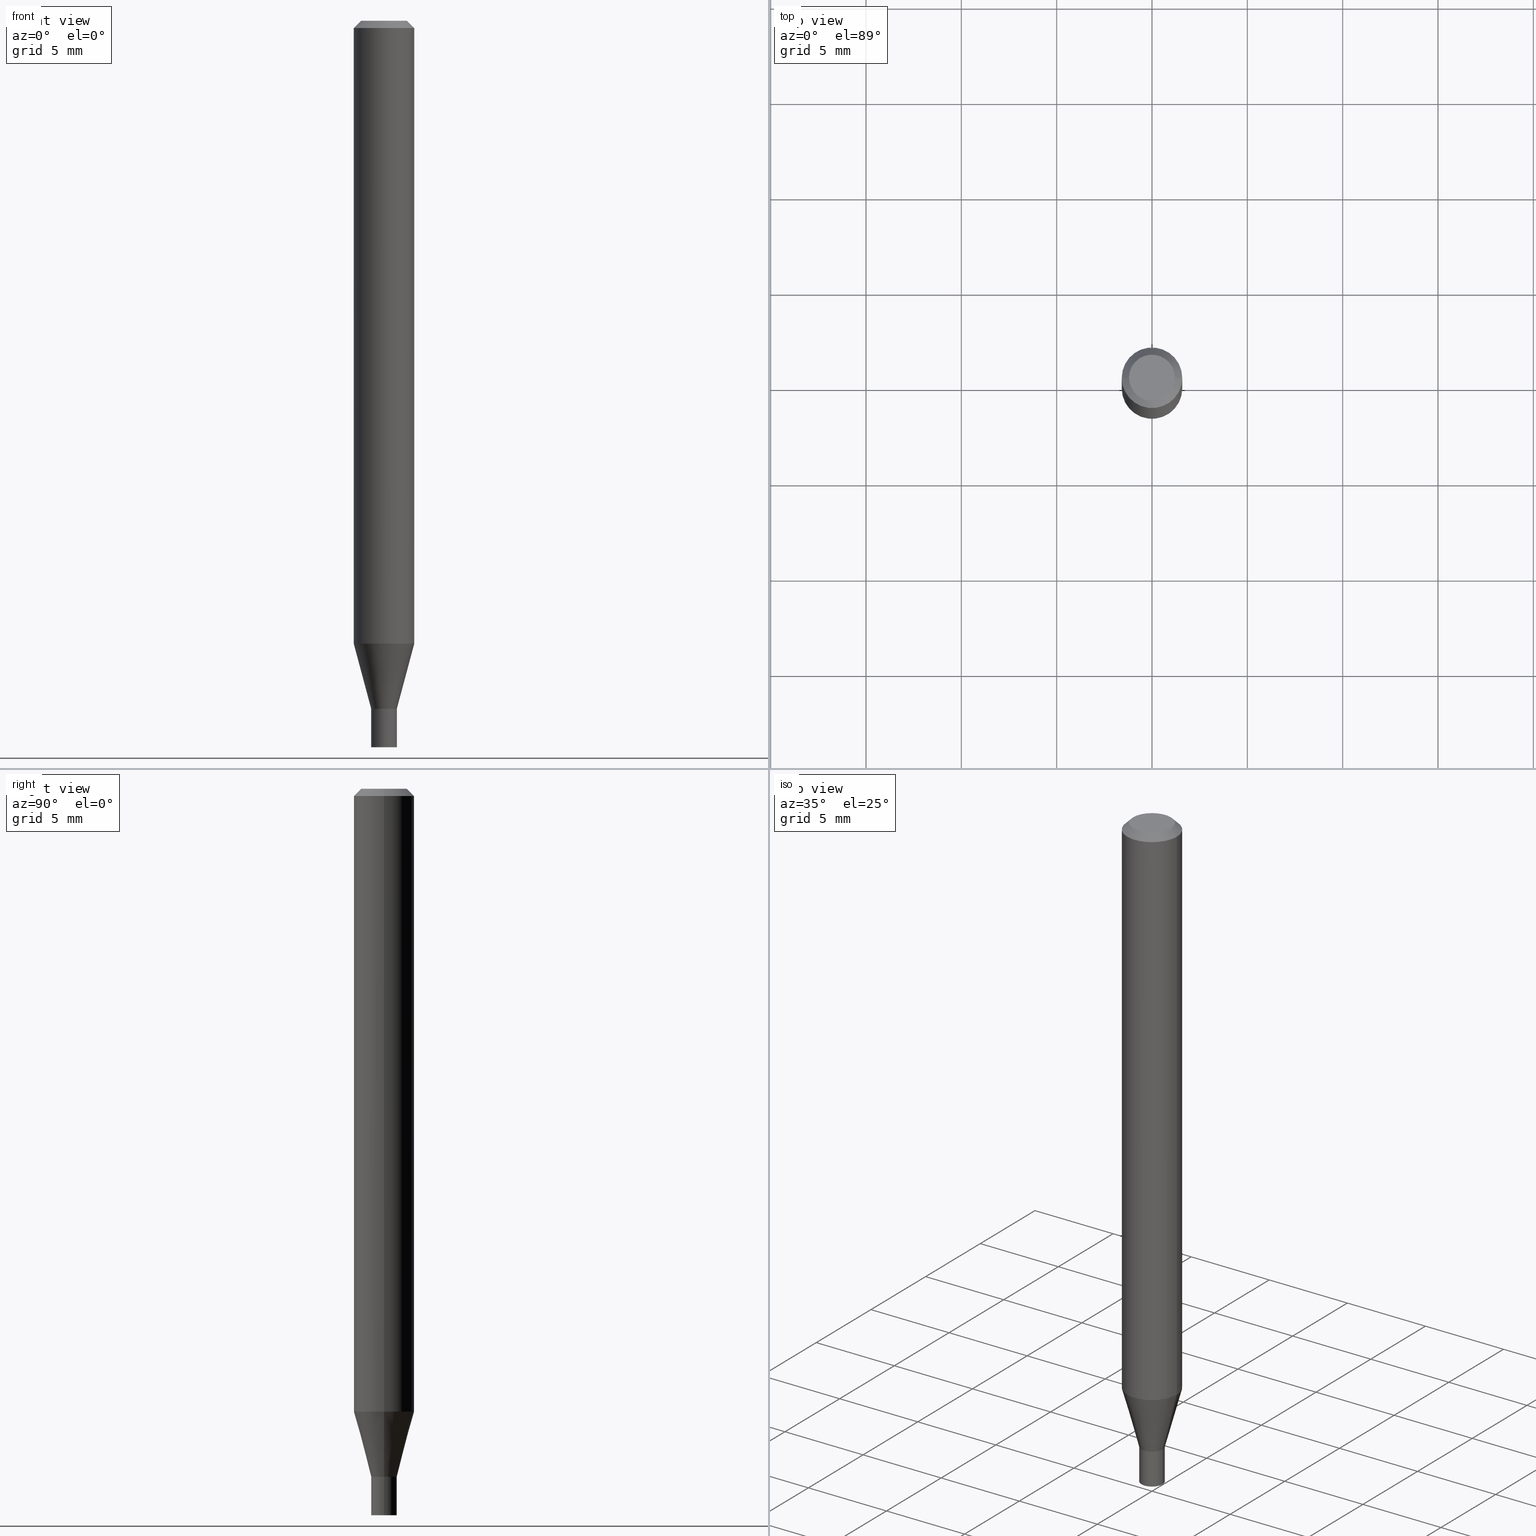
[diagram: canonical four-view strip — front | top / right | iso, engineering-drawing reading convention]
A machine part, canonical four-view strip (front | top / right | iso — engineering-drawing reading convention). The complete STEP part file that produces these views, byte-faithful:
ISO-10303-21;
HEADER;
FILE_DESCRIPTION (( 'STEP AP203' ),
    '1' );
FILE_NAME ('04088.STEP',
    '2024-03-14T16:58:25',
    ( '' ),
    ( '' ),
    'SwSTEP 2.0',
    'SolidWorks 2023',
    '' );
FILE_SCHEMA (( 'CONFIG_CONTROL_DESIGN' ));
ENDSEC;

DATA;
#1 = DIRECTION ( 'NONE',  ( 1.000000000000000000, -6.982962677686258822E-15, 0.000000000000000000 ) ) ;
#2 = DIRECTION ( 'NONE',  ( -2.445468806185136597E-29, 3.491481338843145583E-15, 1.000000000000000000 ) ) ;
#3 = VERTEX_POINT ( 'NONE', #185 ) ;
#4 = EDGE_CURVE ( 'NONE', #3, #172, #290, .T. ) ;
#5 = DIRECTION ( 'NONE',  ( -2.445468806185136597E-29, 3.491481338843145583E-15, 1.000000000000000000 ) ) ;
#6 = CARTESIAN_POINT ( 'NONE',  ( 3.668203209277704895E-29, -5.237222008264718177E-15, -1.500000000000000222 ) ) ;
#7 = PLANE ( 'NONE',  #384 ) ;
#8 = ORIENTED_EDGE ( 'NONE', *, *, #357, .F. ) ;
#9 = CARTESIAN_POINT ( 'NONE',  ( 0.000000000000000000, 0.000000000000000000, 0.000000000000000000 ) ) ;
#10 = DIRECTION ( 'NONE',  ( 1.000000000000000000, -6.982962677686277755E-15, 0.000000000000000000 ) ) ;
#11 = CONICAL_SURFACE ( 'NONE', #183, 0.06250000000000000000, 0.7853981633974438381 ) ;
#12 = VECTOR ( 'NONE', #250, 39.37007874015748143 ) ;
#13 = CC_DESIGN_APPROVAL ( #354, ( #256 ) ) ;
#14 = CARTESIAN_POINT ( 'NONE',  ( -0.02599999999999999534, -4.774908130529064219E-15, -1.420500000000000318 ) ) ;
#15 = ADVANCED_FACE ( 'NONE', ( #46 ), #446, .T. ) ;
#16 = PERSON_AND_ORGANIZATION ( #463, #425 ) ;
#17 = ADVANCED_FACE ( 'NONE', ( #122 ), #7, .F. ) ;
#18 = APPLICATION_CONTEXT ( 'configuration controlled 3d designs of mechanical parts and assemblies' ) ;
#19 = CIRCLE ( 'NONE', #407, 0.02649999999999999925 ) ;
#20 = AXIS2_PLACEMENT_3D ( 'NONE', #175, #456, #454 ) ;
#21 = LENGTH_MEASURE_WITH_UNIT ( LENGTH_MEASURE( 0.02539999999999999897 ), #296 );
#22 = ORIENTED_EDGE ( 'NONE', *, *, #244, .F. ) ;
#23 = VERTEX_POINT ( 'NONE', #150 ) ;
#24 = MANIFOLD_SOLID_BREP ( 'Body-Move/Copy2[2]', #110 ) ;
#25 = PERSON_AND_ORGANIZATION ( #463, #425 ) ;
#26 = CC_DESIGN_PERSON_AND_ORGANIZATION_ASSIGNMENT ( #264, #161, ( #256 ) ) ;
#27 = ORIENTED_EDGE ( 'NONE', *, *, #144, .F. ) ;
#28 = COORDINATED_UNIVERSAL_TIME_OFFSET ( 5, 0, .BEHIND. ) ;
#29 = MANIFOLD_SOLID_BREP ( 'Body-Move/Copy2[1]', #377 ) ;
#30 = DIRECTION ( 'NONE',  ( -1.000000000000000000, 6.982962677686266711E-15, 0.000000000000000000 ) ) ;
#31 = ORIENTED_EDGE ( 'NONE', *, *, #4, .F. ) ;
#32 = ORIENTED_EDGE ( 'NONE', *, *, #270, .F. ) ;
#33 = ADVANCED_FACE ( 'NONE', ( #152 ), #11, .T. ) ;
#34 = ORIENTED_EDGE ( 'NONE', *, *, #410, .F. ) ;
#35 = CARTESIAN_POINT ( 'NONE',  ( 0.06250000000000000000, -4.364351673553916694E-16, 3.047610484872459871E-30 ) ) ;
#36 = EDGE_LOOP ( 'NONE', ( #184, #341 ) ) ;
#37 = EDGE_LOOP ( 'NONE', ( #236, #303, #279, #169 ) ) ;
#38 = DIRECTION ( 'NONE',  ( -2.445468806185136877E-29, 3.491481338843145188E-15, 1.000000000000000000 ) ) ;
#39 = ADVANCED_FACE ( 'NONE', ( #288 ), #441, .T. ) ;
#40 = FACE_OUTER_BOUND ( 'NONE', #417, .T. ) ;
#41 = ORIENTED_EDGE ( 'NONE', *, *, #449, .T. ) ;
#42 = LINE ( 'NONE', #398, #353 ) ;
#43 = ORIENTED_EDGE ( 'NONE', *, *, #419, .T. ) ;
#44 = ORIENTED_EDGE ( 'NONE', *, *, #274, .F. ) ;
#45 = CYLINDRICAL_SURFACE ( 'NONE', #111, 0.06250000000000000000 ) ;
#46 = FACE_OUTER_BOUND ( 'NONE', #381, .T. ) ;
#47 = ORIENTED_EDGE ( 'NONE', *, *, #275, .T. ) ;
#48 = VECTOR ( 'NONE', #186, 39.37007874015748143 ) ;
#49 = APPLICATION_CONTEXT ( 'configuration controlled 3d designs of mechanical parts and assemblies' ) ;
#50 = EDGE_CURVE ( 'NONE', #226, #172, #393, .T. ) ;
#51 = PLANE ( 'NONE',  #247 ) ;
#52 = CARTESIAN_POINT ( 'NONE',  ( 3.473788439185986455E-29, -4.959649241826688854E-15, -1.420500000000000096 ) ) ;
#53 = CARTESIAN_POINT ( 'NONE',  ( 0.02649999999999999925, -5.422270519223404655E-15, -1.500000000000000222 ) ) ;
#54 = DIRECTION ( 'NONE',  ( -2.438088387897960049E-29, 3.491481338843145188E-15, 1.000000000000000000 ) ) ;
#55 = EDGE_CURVE ( 'NONE', #455, #323, #19, .T. ) ;
#56 = CONICAL_SURFACE ( 'NONE', #245, 0.02599999999999999534, 0.7853981633974739252 ) ;
#57 = DATE_TIME_ROLE ( 'classification_date' ) ;
#58 = APPROVAL_DATE_TIME ( #192, #354 ) ;
#59 = AXIS2_PLACEMENT_3D ( 'NONE', #108, #243, #392 ) ;
#60 = DIRECTION ( 'NONE',  ( 1.000000000000000000, 0.000000000000000000, 0.000000000000000000 ) ) ;
#61 = LOCAL_TIME ( 12, 58, 25.00000000000000000, #94 ) ;
#62 = ORIENTED_EDGE ( 'NONE', *, *, #163, .T. ) ;
#63 = UNCERTAINTY_MEASURE_WITH_UNIT (LENGTH_MEASURE( 1.000000000000000082E-05 ), #338, 'distance_accuracy_value', 'NONE');
#64 = CALENDAR_DATE ( 2024, 14, 3 ) ;
#65 = ORIENTED_EDGE ( 'NONE', *, *, #147, .T. ) ;
#66 = ORIENTED_EDGE ( 'NONE', *, *, #147, .F. ) ;
#67 = DIRECTION ( 'NONE',  ( 1.000000000000000000, -6.982962677686262766E-15, 0.000000000000000000 ) ) ;
#68 = ORIENTED_EDGE ( 'NONE', *, *, #331, .T. ) ;
#69 = CARTESIAN_POINT ( 'NONE',  ( -3.350520365439544480E-45, 4.783655101941405986E-31, 1.370093274943982539E-16 ) ) ;
#70 = ORIENTED_EDGE ( 'NONE', *, *, #101, .T. ) ;
#71 = ORIENTED_EDGE ( 'NONE', *, *, #55, .T. ) ;
#72 = DIRECTION ( 'NONE',  ( 1.000000000000000000, -6.982962677686277755E-15, 0.000000000000000000 ) ) ;
#73 = DIRECTION ( 'NONE',  ( 2.445468806185136597E-29, -3.491481338843145583E-15, -1.000000000000000000 ) ) ;
#74 = FACE_OUTER_BOUND ( 'NONE', #117, .T. ) ;
#75 = CIRCLE ( 'NONE', #334, 0.02599999999999999534 ) ;
#76 = LOCAL_TIME ( 12, 58, 25.00000000000000000, #28 ) ;
#77 = DIRECTION ( 'NONE',  ( -2.445468806185136597E-29, 3.491481338843145583E-15, 1.000000000000000000 ) ) ;
#78 = VERTEX_POINT ( 'NONE', #464 ) ;
#79 = LINE ( 'NONE', #112, #394 ) ;
#80 = DIRECTION ( 'NONE',  ( -0.2588190451025215721, 5.211531920934551831E-15, 0.9659258262890679791 ) ) ;
#81 = CONICAL_SURFACE ( 'NONE', #448, 0.02650000000000020048, 0.2617993877991502960 ) ;
#82 = ADVANCED_FACE ( 'NONE', ( #280 ), #56, .T. ) ;
#83 = DIRECTION ( 'NONE',  ( -2.445468806185136597E-29, 3.491481338843145583E-15, 1.000000000000000000 ) ) ;
#84 = DIRECTION ( 'NONE',  ( 0.7071067811865656694, -2.468850131082446387E-15, 0.7071067811865294761 ) ) ;
#85 = DIRECTION ( 'NONE',  ( 2.445468806185136597E-29, -3.491481338843145583E-15, -1.000000000000000000 ) ) ;
#86 = EDGE_CURVE ( 'NONE', #138, #3, #452, .T. ) ;
#87 = CARTESIAN_POINT ( 'NONE',  ( 3.473788439185987016E-29, -4.959649241826689643E-15, -1.420500000000000318 ) ) ;
#88 = DIRECTION ( 'NONE',  ( -2.445468806185136597E-29, 3.491481338843145583E-15, 1.000000000000000000 ) ) ;
#89 = DIRECTION ( 'NONE',  ( -2.445468806185136597E-29, 3.491481338843145583E-15, 1.000000000000000000 ) ) ;
#90 = VECTOR ( 'NONE', #84, 39.37007874015748143 ) ;
#91 = DATE_AND_TIME ( #408, #155 ) ;
#92 = COORDINATED_UNIVERSAL_TIME_OFFSET ( 5, 0, .BEHIND. ) ;
#93 = PRODUCT_DEFINITION ( 'UNKNOWN', '', #256, #413 ) ;
#94 = COORDINATED_UNIVERSAL_TIME_OFFSET ( 5, 0, .BEHIND. ) ;
#95 = CARTESIAN_POINT ( 'NONE',  ( 3.473788439185986455E-29, -4.959649241826688854E-15, -1.420500000000000096 ) ) ;
#96 = PERSON_AND_ORGANIZATION_ROLE ( 'classification_officer' ) ;
#97 = ADVANCED_FACE ( 'NONE', ( #254 ), #176, .T. ) ;
#98 = ORIENTED_EDGE ( 'NONE', *, *, #275, .F. ) ;
#99 = CARTESIAN_POINT ( 'NONE',  ( 3.145230341197711015E-29, -4.490555354818009189E-15, -1.286146170927521704 ) ) ;
#100 = CC_DESIGN_PERSON_AND_ORGANIZATION_ASSIGNMENT ( #265, #336, ( #93 ) ) ;
#101 = EDGE_CURVE ( 'NONE', #462, #423, #344, .T. ) ;
#102 = AXIS2_PLACEMENT_3D ( 'NONE', #188, #321, #438 ) ;
#103 = CARTESIAN_POINT ( 'NONE',  ( 0.000000000000000000, 0.000000000000000000, 0.000000000000000000 ) ) ;
#104 = VECTOR ( 'NONE', #38, 39.37007874015748143 ) ;
#105 = ORIENTED_EDGE ( 'NONE', *, *, #50, .T. ) ;
#106 = FACE_OUTER_BOUND ( 'NONE', #431, .T. ) ;
#107 = DIRECTION ( 'NONE',  ( -2.445468806185136597E-29, 3.491481338843145583E-15, 1.000000000000000000 ) ) ;
#108 = CARTESIAN_POINT ( 'NONE',  ( 3.473788439185986455E-29, -4.959649241826688854E-15, -1.420500000000000096 ) ) ;
#109 = DIRECTION ( 'NONE',  ( -2.445468806185136597E-29, 3.491481338843145583E-15, 1.000000000000000000 ) ) ;
#110 = CLOSED_SHELL ( 'NONE', ( #208, #82, #205, #97, #39, #181, #435, #33, #414, #444, #114, #130 ) ) ;
#111 = AXIS2_PLACEMENT_3D ( 'NONE', #9, #149, #291 ) ;
#112 = CARTESIAN_POINT ( 'NONE',  ( 0.02650000000000020048, -5.144697752785376121E-15, -1.420500000000000096 ) ) ;
#113 = VERTEX_POINT ( 'NONE', #179 ) ;
#114 = ADVANCED_FACE ( 'NONE', ( #40 ), #339, .T. ) ;
#115 = PLANE ( 'NONE',  #267 ) ;
#116 = EDGE_CURVE ( 'NONE', #323, #455, #173, .T. ) ;
#117 = EDGE_LOOP ( 'NONE', ( #213, #420, #134, #351 ) ) ;
#118 = FACE_OUTER_BOUND ( 'NONE', #387, .T. ) ;
#119 = AXIS2_PLACEMENT_3D ( 'NONE', #95, #88, #373 ) ;
#120 = DIRECTION ( 'NONE',  ( -2.445468806185136597E-29, 3.491481338843145583E-15, 1.000000000000000000 ) ) ;
#121 = FACE_OUTER_BOUND ( 'NONE', #397, .T. ) ;
#122 = FACE_OUTER_BOUND ( 'NONE', #36, .T. ) ;
#123 = CIRCLE ( 'NONE', #255, 0.02599999999999999534 ) ;
#124 = APPROVAL_STATUS ( 'not_yet_approved' ) ;
#125 = EDGE_CURVE ( 'NONE', #388, #460, #210, .T. ) ;
#126 = PERSON_AND_ORGANIZATION ( #463, #425 ) ;
#127 = ORIENTED_EDGE ( 'NONE', *, *, #230, .F. ) ;
#128 = CIRCLE ( 'NONE', #197, 0.04749999999999999362 ) ;
#129 = DATE_AND_TIME ( #271, #61 ) ;
#130 = ADVANCED_FACE ( 'NONE', ( #106 ), #206, .F. ) ;
#131 = APPROVAL_PERSON_ORGANIZATION ( #159, #364, #235 ) ;
#132 = ORIENTED_EDGE ( 'NONE', *, *, #229, .F. ) ;
#133 = DIRECTION ( 'NONE',  ( 1.000000000000000000, -6.982962677686262766E-15, 0.000000000000000000 ) ) ;
#134 = ORIENTED_EDGE ( 'NONE', *, *, #399, .T. ) ;
#135 = DIRECTION ( 'NONE',  ( 1.000000000000000000, -6.982962677686267499E-15, 4.852736867747366768E-29 ) ) ;
#136 = CONICAL_SURFACE ( 'NONE', #312, 0.06250000000000000000, 0.7853981633974438381 ) ;
#137 = DIRECTION ( 'NONE',  ( -2.445468806185136877E-29, 3.491481338843145188E-15, 1.000000000000000000 ) ) ;
#138 = VERTEX_POINT ( 'NONE', #241 ) ;
#139 = CARTESIAN_POINT ( 'NONE',  ( 0.02649999999999999925, -1.850485109586860590E-16, 1.292186845585922957E-30 ) ) ;
#140 = CYLINDRICAL_SURFACE ( 'NONE', #403, 0.02650000000000020048 ) ;
#141 = DIRECTION ( 'NONE',  ( 1.000000000000000000, -6.982962677686265922E-15, 4.876176775795935793E-29 ) ) ;
#142 = VECTOR ( 'NONE', #242, 39.37007874015748143 ) ;
#143 = CC_DESIGN_SECURITY_CLASSIFICATION ( #222, ( #256 ) ) ;
#144 = EDGE_CURVE ( 'NONE', #167, #311, #365, .T. ) ;
#145 = CARTESIAN_POINT ( 'NONE',  ( -0.06250000000000000000, -4.046466144967945784E-15, -1.286146170927521704 ) ) ;
#146 = DIRECTION ( 'NONE',  ( 1.000000000000000000, -6.982962677686261977E-15, 0.000000000000000000 ) ) ;
#147 = EDGE_CURVE ( 'NONE', #311, #167, #202, .T. ) ;
#148 = ORIENTED_EDGE ( 'NONE', *, *, #86, .F. ) ;
#149 = DIRECTION ( 'NONE',  ( -2.445468806185136597E-29, 3.491481338843145583E-15, 1.000000000000000000 ) ) ;
#150 = CARTESIAN_POINT ( 'NONE',  ( -0.02650000000000019354, -4.769609676180839451E-15, -1.420000000000000151 ) ) ;
#151 = DIRECTION ( 'NONE',  ( 1.000000000000000000, -6.982962677686266711E-15, 4.876176775795935793E-29 ) ) ;
#152 = FACE_OUTER_BOUND ( 'NONE', #249, .T. ) ;
#153 = ADVANCED_BREP_SHAPE_REPRESENTATION ( '04088', ( #29, #24, #299 ), #261 ) ;
#154 = CIRCLE ( 'NONE', #415, 0.02649999999999999925 ) ;
#155 = LOCAL_TIME ( 12, 58, 25.00000000000000000, #374 ) ;
#156 = DIRECTION ( 'NONE',  ( 1.000000000000000000, -6.982962677686266711E-15, 4.876176775795935793E-29 ) ) ;
#157 = CARTESIAN_POINT ( 'NONE',  ( 3.316907271900976096E-16, 0.04749999999999999362, -9.734069984785028182E-17 ) ) ;
#158 = APPLICATION_PROTOCOL_DEFINITION ( 'international standard', 'config_control_design', 1994, #49 ) ;
#159 = PERSON_AND_ORGANIZATION ( #463, #425 ) ;
#160 = AXIS2_PLACEMENT_3D ( 'NONE', #309, #237, #282 ) ;
#161 = PERSON_AND_ORGANIZATION_ROLE ( 'design_supplier' ) ;
#162 = CARTESIAN_POINT ( 'NONE',  ( 0.000000000000000000, 0.000000000000000000, 0.000000000000000000 ) ) ;
#163 = EDGE_CURVE ( 'NONE', #455, #388, #356, .T. ) ;
#164 = ORIENTED_EDGE ( 'NONE', *, *, #270, .T. ) ;
#165 = CIRCLE ( 'NONE', #432, 0.02650000000000019354 ) ;
#166 = LINE ( 'NONE', #426, #142 ) ;
#167 = VERTEX_POINT ( 'NONE', #203 ) ;
#168 = ORIENTED_EDGE ( 'NONE', *, *, #178, .T. ) ;
#169 = ORIENTED_EDGE ( 'NONE', *, *, #178, .F. ) ;
#170 = CARTESIAN_POINT ( 'NONE',  ( 0.06250000000000000000, -4.888073874380388472E-16, -0.01499999999999999944 ) ) ;
#171 = ORIENTED_EDGE ( 'NONE', *, *, #163, .F. ) ;
#172 = VERTEX_POINT ( 'NONE', #170 ) ;
#173 = CIRCLE ( 'NONE', #20, 0.02649999999999999925 ) ;
#174 = PRODUCT_RELATED_PRODUCT_CATEGORY ( 'detail', '', ( #370 ) ) ;
#175 = CARTESIAN_POINT ( 'NONE',  ( 3.668203209277704895E-29, -5.237222008264718177E-15, -1.500000000000000222 ) ) ;
#176 = CYLINDRICAL_SURFACE ( 'NONE', #221, 0.06250000000000000000 ) ;
#177 = APPROVAL_PERSON_ORGANIZATION ( #16, #433, #272 ) ;
#178 = EDGE_CURVE ( 'NONE', #167, #172, #211, .T. ) ;
#179 = CARTESIAN_POINT ( 'NONE',  ( 0.02650000000000019354, -5.142952012115954617E-15, -1.420000000000000151 ) ) ;
#180 = DIRECTION ( 'NONE',  ( -2.438088387897960049E-29, 3.491481338843145188E-15, 1.000000000000000000 ) ) ;
#181 = ADVANCED_FACE ( 'NONE', ( #466 ), #81, .T. ) ;
#182 = CYLINDRICAL_SURFACE ( 'NONE', #240, 0.02649999999999999925 ) ;
#183 = AXIS2_PLACEMENT_3D ( 'NONE', #258, #85, #367 ) ;
#184 = ORIENTED_EDGE ( 'NONE', *, *, #125, .T. ) ;
#185 = CARTESIAN_POINT ( 'NONE',  ( 0.04749999999999999362, -4.035134999187576158E-16, 1.370093274944008177E-16 ) ) ;
#186 = DIRECTION ( 'NONE',  ( -0.7071067811865443531, 2.468850131082223534E-15, -0.7071067811865506814 ) ) ;
#187 = DIRECTION ( 'NONE',  ( 1.000000000000000000, -6.982962677686258822E-15, 0.000000000000000000 ) ) ;
#188 = CARTESIAN_POINT ( 'NONE',  ( 3.668203209277705088E-31, -5.237222008264718399E-17, -0.01499999999999999944 ) ) ;
#189 = CARTESIAN_POINT ( 'NONE',  ( 3.576687321579069994E-29, -5.368277968210015545E-15, -1.500000000000000222 ) ) ;
#190 = DIRECTION ( 'NONE',  ( -2.445468806185136877E-29, 3.491481338843145188E-15, 1.000000000000000000 ) ) ;
#191 = AXIS2_PLACEMENT_3D ( 'NONE', #366, #218, #328 ) ;
#192 = DATE_AND_TIME ( #376, #212 ) ;
#193 = APPROVAL_DATE_TIME ( #91, #364 ) ;
#194 = APPLICATION_PROTOCOL_DEFINITION ( 'international standard', 'config_control_design', 1994, #18 ) ;
#195 = EDGE_CURVE ( 'NONE', #311, #226, #166, .T. ) ;
#196 = DIRECTION ( 'NONE',  ( 0.7071067811865443531, -7.319954787623245001E-15, -0.7071067811865506814 ) ) ;
#197 = AXIS2_PLACEMENT_3D ( 'NONE', #69, #429, #135 ) ;
#198 = DATE_AND_TIME ( #64, #268 ) ;
#199 = ORIENTED_EDGE ( 'NONE', *, *, #55, .F. ) ;
#200 = APPROVAL_STATUS ( 'not_yet_approved' ) ;
#201 = ORIENTED_EDGE ( 'NONE', *, *, #125, .F. ) ;
#202 = CIRCLE ( 'NONE', #298, 0.06250000000000000000 ) ;
#203 = CARTESIAN_POINT ( 'NONE',  ( 0.06250000000000000000, -4.926990522173400069E-15, -1.286146170927521704 ) ) ;
#204 = ORIENTED_EDGE ( 'NONE', *, *, #101, .F. ) ;
#205 = ADVANCED_FACE ( 'NONE', ( #74 ), #136, .T. ) ;
#206 = CYLINDRICAL_SURFACE ( 'NONE', #160, 0.02650000000000020048 ) ;
#207 = ORIENTED_EDGE ( 'NONE', *, *, #357, .T. ) ;
#208 = ADVANCED_FACE ( 'NONE', ( #421 ), #140, .F. ) ;
#209 = LINE ( 'NONE', #352, #104 ) ;
#210 = CIRCLE ( 'NONE', #442, 0.02649999999999999925 ) ;
#211 = LINE ( 'NONE', #35, #277 ) ;
#212 = LOCAL_TIME ( 12, 58, 25.00000000000000000, #92 ) ;
#213 = ORIENTED_EDGE ( 'NONE', *, *, #214, .F. ) ;
#214 = EDGE_CURVE ( 'NONE', #3, #138, #128, .T. ) ;
#215 = DIRECTION ( 'NONE',  ( 1.000000000000000000, -6.982962677686258822E-15, 0.000000000000000000 ) ) ;
#216 = ORIENTED_EDGE ( 'NONE', *, *, #244, .T. ) ;
#217 = DATE_AND_TIME ( #342, #76 ) ;
#218 = DIRECTION ( 'NONE',  ( -2.445468806185136597E-29, 3.491481338843145583E-15, 1.000000000000000000 ) ) ;
#219 = AXIS2_PLACEMENT_3D ( 'NONE', #319, #322, #289 ) ;
#220 = DIRECTION ( 'NONE',  ( -1.000000000000000000, 6.982962677686265922E-15, -4.876176775795935793E-29 ) ) ;
#221 = AXIS2_PLACEMENT_3D ( 'NONE', #325, #89, #156 ) ;
#222 = SECURITY_CLASSIFICATION ( '', '', #300 ) ;
#223 = CARTESIAN_POINT ( 'NONE',  ( 0.06250000000000000000, -4.811533449433679005E-16, -0.01499999999999999944 ) ) ;
#224 = CARTESIAN_POINT ( 'NONE',  ( 3.472565704782894214E-29, -4.957903501157267351E-15, -1.420000000000000151 ) ) ;
#225 = PRODUCT_DEFINITION_SHAPE ( 'NONE', 'NONE',  #93 ) ;
#226 = VERTEX_POINT ( 'NONE', #359 ) ;
#227 = CARTESIAN_POINT ( 'NONE',  ( 0.02599999999999999534, -5.141206271446532325E-15, -1.420500000000000318 ) ) ;
#228 = CARTESIAN_POINT ( 'NONE',  ( 3.473788439185986455E-29, -4.959649241826688854E-15, -1.420500000000000096 ) ) ;
#229 = EDGE_CURVE ( 'NONE', #462, #23, #209, .T. ) ;
#230 = EDGE_CURVE ( 'NONE', #423, #462, #345, .T. ) ;
#231 = APPROVAL_STATUS ( 'not_yet_approved' ) ;
#232 = AXIS2_PLACEMENT_3D ( 'NONE', #382, #459, #133 ) ;
#233 = DATE_TIME_ROLE ( 'creation_date' ) ;
#234 = EDGE_LOOP ( 'NONE', ( #204, #457, #41, #380 ) ) ;
#235 = APPROVAL_ROLE ( '' ) ;
#236 = ORIENTED_EDGE ( 'NONE', *, *, #144, .T. ) ;
#237 = DIRECTION ( 'NONE',  ( -2.445468806185136597E-29, 3.491481338843145583E-15, 1.000000000000000000 ) ) ;
#238 = ORIENTED_EDGE ( 'NONE', *, *, #239, .F. ) ;
#239 = EDGE_CURVE ( 'NONE', #113, #23, #461, .T. ) ;
#240 = AXIS2_PLACEMENT_3D ( 'NONE', #320, #83, #151 ) ;
#241 = CARTESIAN_POINT ( 'NONE',  ( -0.04749999999999999362, 3.578768372314212971E-16, 1.370093274943958627E-16 ) ) ;
#242 = DIRECTION ( 'NONE',  ( -2.445468806185136877E-29, 3.491481338843145188E-15, 1.000000000000000000 ) ) ;
#243 = DIRECTION ( 'NONE',  ( -2.445468806185136597E-29, 3.491481338843145583E-15, 1.000000000000000000 ) ) ;
#244 = EDGE_CURVE ( 'NONE', #78, #308, #123, .T. ) ;
#245 = AXIS2_PLACEMENT_3D ( 'NONE', #428, #107, #187 ) ;
#246 = CC_DESIGN_DATE_AND_TIME_ASSIGNMENT ( #129, #57, ( #222 ) ) ;
#247 = AXIS2_PLACEMENT_3D ( 'NONE', #157, #253, #220 ) ;
#248 = DIRECTION ( 'NONE',  ( 1.000000000000000000, -6.982962677686263555E-15, 0.000000000000000000 ) ) ;
#249 = EDGE_LOOP ( 'NONE', ( #31, #148, #43, #105 ) ) ;
#250 = DIRECTION ( 'NONE',  ( -2.445468806185136877E-29, 3.491481338843145188E-15, 1.000000000000000000 ) ) ;
#251 = LINE ( 'NONE', #227, #90 ) ;
#252 = DIRECTION ( 'NONE',  ( 2.438088387897960049E-29, -3.491481338843145188E-15, -1.000000000000000000 ) ) ;
#253 = DIRECTION ( 'NONE',  ( 2.438088387897960049E-29, -3.491481338843145188E-15, -1.000000000000000000 ) ) ;
#254 = FACE_OUTER_BOUND ( 'NONE', #37, .T. ) ;
#255 = AXIS2_PLACEMENT_3D ( 'NONE', #395, #77, #215 ) ;
#256 = PRODUCT_DEFINITION_FORMATION_WITH_SPECIFIED_SOURCE ( 'ANY', '', #370, .NOT_KNOWN. ) ;
#257 = LINE ( 'NONE', #287, #12 ) ;
#258 = CARTESIAN_POINT ( 'NONE',  ( 3.668203209277705088E-31, -5.237222008264718399E-17, -0.01499999999999999944 ) ) ;
#259 = CARTESIAN_POINT ( 'NONE',  ( 0.02599999999999999534, -5.141206271446532325E-15, -1.420500000000000318 ) ) ;
#260 = PERSON_AND_ORGANIZATION_ROLE ( 'design_owner' ) ;
#261 =( GEOMETRIC_REPRESENTATION_CONTEXT ( 3 ) GLOBAL_UNCERTAINTY_ASSIGNED_CONTEXT ( ( #63 ) ) GLOBAL_UNIT_ASSIGNED_CONTEXT ( ( #338, #450, #416 ) ) REPRESENTATION_CONTEXT ( 'NONE', 'WORKASPACE' ) );
#262 = CC_DESIGN_APPROVAL ( #364, ( #93 ) ) ;
#263 = MECHANICAL_CONTEXT ( 'NONE', #18, 'mechanical' ) ;
#264 = PERSON_AND_ORGANIZATION ( #463, #425 ) ;
#265 = PERSON_AND_ORGANIZATION ( #463, #425 ) ;
#266 = ORIENTED_EDGE ( 'NONE', *, *, #86, .T. ) ;
#267 = AXIS2_PLACEMENT_3D ( 'NONE', #189, #54, #286 ) ;
#268 = LOCAL_TIME ( 12, 58, 25.00000000000000000, #411 ) ;
#269 = DIMENSIONAL_EXPONENTS ( 1.000000000000000000, 0.000000000000000000, 0.000000000000000000, 0.000000000000000000, 0.000000000000000000, 0.000000000000000000, 0.000000000000000000 ) ;
#270 = EDGE_CURVE ( 'NONE', #462, #311, #42, .T. ) ;
#271 = CALENDAR_DATE ( 2024, 14, 3 ) ;
#272 = APPROVAL_ROLE ( '' ) ;
#273 = DIRECTION ( 'NONE',  ( -2.445468806185136597E-29, 3.491481338843145583E-15, 1.000000000000000000 ) ) ;
#274 = EDGE_CURVE ( 'NONE', #460, #388, #154, .T. ) ;
#275 = EDGE_CURVE ( 'NONE', #323, #460, #257, .T. ) ;
#276 = CARTESIAN_POINT ( 'NONE',  ( 3.473788439185986455E-29, -4.959649241826688854E-15, -1.420500000000000096 ) ) ;
#277 = VECTOR ( 'NONE', #465, 39.37007874015748143 ) ;
#278 = DIRECTION ( 'NONE',  ( 1.000000000000000000, -6.982962677686261977E-15, 0.000000000000000000 ) ) ;
#279 = ORIENTED_EDGE ( 'NONE', *, *, #399, .F. ) ;
#280 = FACE_OUTER_BOUND ( 'NONE', #379, .T. ) ;
#281 = DIRECTION ( 'NONE',  ( 1.000000000000000000, -6.982962677686258822E-15, 0.000000000000000000 ) ) ;
#282 = DIRECTION ( 'NONE',  ( 1.000000000000000000, -6.982962677686266711E-15, 4.876176775795935232E-29 ) ) ;
#283 = ORIENTED_EDGE ( 'NONE', *, *, #230, .T. ) ;
#284 = AXIS2_PLACEMENT_3D ( 'NONE', #52, #401, #146 ) ;
#285 = ORIENTED_EDGE ( 'NONE', *, *, #375, .T. ) ;
#286 = DIRECTION ( 'NONE',  ( 1.000000000000000000, -6.982962677686265922E-15, 4.876176775795935793E-29 ) ) ;
#287 = CARTESIAN_POINT ( 'NONE',  ( -0.02649999999999999925, 1.882938249764265439E-16, -1.303517798917549926E-30 ) ) ;
#288 = FACE_OUTER_BOUND ( 'NONE', #439, .T. ) ;
#289 = DIRECTION ( 'NONE',  ( 1.000000000000000000, -6.982962677686266711E-15, 4.876176775795935793E-29 ) ) ;
#290 = LINE ( 'NONE', #223, #332 ) ;
#291 = DIRECTION ( 'NONE',  ( 1.000000000000000000, -6.982962677686266711E-15, 4.876176775795935793E-29 ) ) ;
#292 = DIRECTION ( 'NONE',  ( 1.000000000000000000, -6.982962677686267499E-15, 4.852736867747366768E-29 ) ) ;
#293 = CARTESIAN_POINT ( 'NONE',  ( -0.02649999999999999925, -4.910141800069277982E-15, -1.420500000000000096 ) ) ;
#294 = AXIS2_PLACEMENT_3D ( 'NONE', #430, #109, #248 ) ;
#295 = LINE ( 'NONE', #445, #48 ) ;
#296 =( LENGTH_UNIT ( ) NAMED_UNIT ( * ) SI_UNIT ( $, .METRE. ) );
#297 = CARTESIAN_POINT ( 'NONE',  ( -0.02650000000000020048, -4.408910780909102975E-15, -1.420500000000000096 ) ) ;
#298 = AXIS2_PLACEMENT_3D ( 'NONE', #99, #315, #67 ) ;
#299 = AXIS2_PLACEMENT_3D ( 'NONE', #162, #337, #60 ) ;
#300 = SECURITY_CLASSIFICATION_LEVEL ( 'unclassified' ) ;
#301 = ADVANCED_FACE ( 'NONE', ( #437 ), #115, .F. ) ;
#302 = PERSON_AND_ORGANIZATION ( #463, #425 ) ;
#303 = ORIENTED_EDGE ( 'NONE', *, *, #195, .T. ) ;
#304 = AXIS2_PLACEMENT_3D ( 'NONE', #87, #180, #141 ) ;
#305 = DIRECTION ( 'NONE',  ( -2.445468806185136597E-29, 3.491481338843145583E-15, 1.000000000000000000 ) ) ;
#306 = DIRECTION ( 'NONE',  ( 1.000000000000000000, -6.982962677686266711E-15, 4.876176775795935232E-29 ) ) ;
#307 = ORIENTED_EDGE ( 'NONE', *, *, #214, .T. ) ;
#308 = VERTEX_POINT ( 'NONE', #259 ) ;
#309 = CARTESIAN_POINT ( 'NONE',  ( 0.000000000000000000, 0.000000000000000000, 0.000000000000000000 ) ) ;
#310 = CC_DESIGN_DATE_AND_TIME_ASSIGNMENT ( #198, #233, ( #93 ) ) ;
#311 = VERTEX_POINT ( 'NONE', #145 ) ;
#312 = AXIS2_PLACEMENT_3D ( 'NONE', #390, #73, #30 ) ;
#313 = DIRECTION ( 'NONE',  ( -2.445468806185136597E-29, 3.491481338843145583E-15, 1.000000000000000000 ) ) ;
#314 = CARTESIAN_POINT ( 'NONE',  ( 3.473788439185986455E-29, -4.959649241826688854E-15, -1.420500000000000096 ) ) ;
#315 = DIRECTION ( 'NONE',  ( -2.445468806185136597E-29, 3.491481338843145583E-15, 1.000000000000000000 ) ) ;
#316 = CC_DESIGN_PERSON_AND_ORGANIZATION_ASSIGNMENT ( #25, #451, ( #256 ) ) ;
#317 = ORIENTED_EDGE ( 'NONE', *, *, #375, .F. ) ;
#318 = CARTESIAN_POINT ( 'NONE',  ( 0.02650000000000020048, -5.144697752785376121E-15, -1.420500000000000096 ) ) ;
#319 = CARTESIAN_POINT ( 'NONE',  ( 0.000000000000000000, 0.000000000000000000, 0.000000000000000000 ) ) ;
#320 = CARTESIAN_POINT ( 'NONE',  ( 0.000000000000000000, 0.000000000000000000, 0.000000000000000000 ) ) ;
#321 = DIRECTION ( 'NONE',  ( -2.445468806185136597E-29, 3.491481338843145583E-15, 1.000000000000000000 ) ) ;
#322 = DIRECTION ( 'NONE',  ( -2.445468806185136597E-29, 3.491481338843145583E-15, 1.000000000000000000 ) ) ;
#323 = VERTEX_POINT ( 'NONE', #443 ) ;
#324 = SHAPE_DEFINITION_REPRESENTATION ( #225, #153 ) ;
#325 = CARTESIAN_POINT ( 'NONE',  ( 0.000000000000000000, 0.000000000000000000, 0.000000000000000000 ) ) ;
#326 = DIRECTION ( 'NONE',  ( -2.445468806185136597E-29, 3.491481338843145583E-15, 1.000000000000000000 ) ) ;
#327 = CARTESIAN_POINT ( 'NONE',  ( -3.350520365439544480E-45, 4.783655101941405986E-31, 1.370093274943982539E-16 ) ) ;
#328 = DIRECTION ( 'NONE',  ( 1.000000000000000000, -6.982962677686266711E-15, 0.000000000000000000 ) ) ;
#329 = CARTESIAN_POINT ( 'NONE',  ( 1.850485109587207688E-16, 0.02649999999999503794, -1.420500000000000096 ) ) ;
#330 = ORIENTED_EDGE ( 'NONE', *, *, #116, .F. ) ;
#331 = EDGE_CURVE ( 'NONE', #308, #113, #251, .T. ) ;
#332 = VECTOR ( 'NONE', #196, 39.37007874015748143 ) ;
#333 = CARTESIAN_POINT ( 'NONE',  ( 0.02649999999999999925, -5.144697752785374543E-15, -1.420500000000000096 ) ) ;
#334 = AXIS2_PLACEMENT_3D ( 'NONE', #372, #326, #1 ) ;
#335 = CC_DESIGN_PERSON_AND_ORGANIZATION_ASSIGNMENT ( #412, #96, ( #222 ) ) ;
#336 = PERSON_AND_ORGANIZATION_ROLE ( 'creator' ) ;
#337 = DIRECTION ( 'NONE',  ( 0.000000000000000000, 0.000000000000000000, 1.000000000000000000 ) ) ;
#338 =( CONVERSION_BASED_UNIT ( 'INCH', #21 ) LENGTH_UNIT ( ) NAMED_UNIT ( #269 ) );
#339 = CONICAL_SURFACE ( 'NONE', #378, 0.02599999999999999534, 0.7853981633974739252 ) ;
#340 = APPROVAL_ROLE ( '' ) ;
#341 = ORIENTED_EDGE ( 'NONE', *, *, #274, .T. ) ;
#342 = CALENDAR_DATE ( 2024, 14, 3 ) ;
#343 = ORIENTED_EDGE ( 'NONE', *, *, #347, .T. ) ;
#344 = CIRCLE ( 'NONE', #119, 0.02650000000000020048 ) ;
#345 = CIRCLE ( 'NONE', #59, 0.02650000000000020048 ) ;
#346 = APPROVAL_PERSON_ORGANIZATION ( #126, #354, #340 ) ;
#347 = EDGE_CURVE ( 'NONE', #423, #113, #400, .T. ) ;
#348 = DIRECTION ( 'NONE',  ( -2.445468806185136597E-29, 3.491481338843145583E-15, 1.000000000000000000 ) ) ;
#349 = ORIENTED_EDGE ( 'NONE', *, *, #410, .T. ) ;
#350 = DIRECTION ( 'NONE',  ( 1.000000000000000000, -6.982962677686277755E-15, 0.000000000000000000 ) ) ;
#351 = ORIENTED_EDGE ( 'NONE', *, *, #419, .F. ) ;
#352 = CARTESIAN_POINT ( 'NONE',  ( -0.02650000000000020048, 1.882938249764279737E-16, -1.303517798917559910E-30 ) ) ;
#353 = VECTOR ( 'NONE', #80, 39.37007874015748143 ) ;
#354 = APPROVAL ( #200, 'UNSPECIFIED' ) ;
#355 = CC_DESIGN_APPROVAL ( #433, ( #222 ) ) ;
#356 = LINE ( 'NONE', #139, #424 ) ;
#357 = EDGE_CURVE ( 'NONE', #308, #78, #75, .T. ) ;
#358 = EDGE_LOOP ( 'NONE', ( #199, #330 ) ) ;
#359 = CARTESIAN_POINT ( 'NONE',  ( -0.06250000000000000000, -1.827374577600265321E-15, -0.01499999999999999944 ) ) ;
#360 = ORIENTED_EDGE ( 'NONE', *, *, #449, .F. ) ;
#361 = APPROVAL_DATE_TIME ( #217, #433 ) ;
#362 = FACE_OUTER_BOUND ( 'NONE', #391, .T. ) ;
#363 = ORIENTED_EDGE ( 'NONE', *, *, #331, .F. ) ;
#364 = APPROVAL ( #124, 'UNSPECIFIED' ) ;
#365 = CIRCLE ( 'NONE', #232, 0.06250000000000000000 ) ;
#366 = CARTESIAN_POINT ( 'NONE',  ( 3.668203209277705088E-31, -5.237222008264718399E-17, -0.01499999999999999944 ) ) ;
#367 = DIRECTION ( 'NONE',  ( -1.000000000000000000, 6.982962677686266711E-15, 0.000000000000000000 ) ) ;
#368 = DIRECTION ( 'NONE',  ( 1.000000000000000000, -6.982962677686263555E-15, 0.000000000000000000 ) ) ;
#369 = CARTESIAN_POINT ( 'NONE',  ( 0.02650000000000020048, -1.850485109586874641E-16, 1.292186845585932591E-30 ) ) ;
#370 = PRODUCT ( '04088', '04088', '', ( #263 ) ) ;
#371 = AXIS2_PLACEMENT_3D ( 'NONE', #327, #2, #292 ) ;
#372 = CARTESIAN_POINT ( 'NONE',  ( 3.473788439185987016E-29, -4.959649241826689643E-15, -1.420500000000000318 ) ) ;
#373 = DIRECTION ( 'NONE',  ( 1.000000000000000000, -6.982962677686261977E-15, 0.000000000000000000 ) ) ;
#374 = COORDINATED_UNIVERSAL_TIME_OFFSET ( 5, 0, .BEHIND. ) ;
#375 = EDGE_CURVE ( 'NONE', #423, #167, #79, .T. ) ;
#376 = CALENDAR_DATE ( 2024, 14, 3 ) ;
#377 = CLOSED_SHELL ( 'NONE', ( #15, #301, #447, #17 ) ) ;
#378 = AXIS2_PLACEMENT_3D ( 'NONE', #418, #273, #281 ) ;
#379 = EDGE_LOOP ( 'NONE', ( #207, #349, #238, #363 ) ) ;
#380 = ORIENTED_EDGE ( 'NONE', *, *, #347, .F. ) ;
#381 = EDGE_LOOP ( 'NONE', ( #71, #47, #201, #171 ) ) ;
#382 = CARTESIAN_POINT ( 'NONE',  ( 3.145230341197711015E-29, -4.490555354818009189E-15, -1.286146170927521704 ) ) ;
#383 = EDGE_LOOP ( 'NONE', ( #32, #70, #285, #66 ) ) ;
#384 = AXIS2_PLACEMENT_3D ( 'NONE', #329, #252, #402 ) ;
#385 = CIRCLE ( 'NONE', #191, 0.06250000000000000000 ) ;
#386 = DIRECTION ( 'NONE',  ( -2.445468806185136597E-29, 3.491481338843145583E-15, 1.000000000000000000 ) ) ;
#387 = EDGE_LOOP ( 'NONE', ( #98, #458, #62, #44 ) ) ;
#388 = VERTEX_POINT ( 'NONE', #333 ) ;
#389 = ORIENTED_EDGE ( 'NONE', *, *, #50, .F. ) ;
#390 = CARTESIAN_POINT ( 'NONE',  ( 3.668203209277705088E-31, -5.237222008264718399E-17, -0.01499999999999999944 ) ) ;
#391 = EDGE_LOOP ( 'NONE', ( #266, #307 ) ) ;
#392 = DIRECTION ( 'NONE',  ( 1.000000000000000000, -6.982962677686261977E-15, 0.000000000000000000 ) ) ;
#393 = CIRCLE ( 'NONE', #102, 0.06250000000000000000 ) ;
#394 = VECTOR ( 'NONE', #434, 39.37007874015748143 ) ;
#395 = CARTESIAN_POINT ( 'NONE',  ( 3.473788439185987016E-29, -4.959649241826689643E-15, -1.420500000000000318 ) ) ;
#396 = EDGE_LOOP ( 'NONE', ( #8, #22 ) ) ;
#397 = EDGE_LOOP ( 'NONE', ( #436, #65, #168, #389 ) ) ;
#398 = CARTESIAN_POINT ( 'NONE',  ( -0.02650000000000020048, -4.771355416850260165E-15, -1.420500000000000096 ) ) ;
#399 = EDGE_CURVE ( 'NONE', #172, #226, #385, .T. ) ;
#400 = LINE ( 'NONE', #369, #409 ) ;
#401 = DIRECTION ( 'NONE',  ( -2.445468806185136597E-29, 3.491481338843145583E-15, 1.000000000000000000 ) ) ;
#402 = DIRECTION ( 'NONE',  ( -1.000000000000000000, 6.982962677686265922E-15, -4.876176775795935793E-29 ) ) ;
#403 = AXIS2_PLACEMENT_3D ( 'NONE', #103, #386, #306 ) ;
#404 = DIRECTION ( 'NONE',  ( -0.7071067811865656694, 7.493145998870420424E-15, 0.7071067811865294761 ) ) ;
#405 = LINE ( 'NONE', #14, #453 ) ;
#406 = PLANE ( 'NONE',  #304 ) ;
#407 = AXIS2_PLACEMENT_3D ( 'NONE', #6, #313, #72 ) ;
#408 = CALENDAR_DATE ( 2024, 14, 3 ) ;
#409 = VECTOR ( 'NONE', #190, 39.37007874015748143 ) ;
#410 = EDGE_CURVE ( 'NONE', #78, #23, #405, .T. ) ;
#411 = COORDINATED_UNIVERSAL_TIME_OFFSET ( 5, 0, .BEHIND. ) ;
#412 = PERSON_AND_ORGANIZATION ( #463, #425 ) ;
#413 = DESIGN_CONTEXT ( 'detailed design', #49, 'design' ) ;
#414 = ADVANCED_FACE ( 'NONE', ( #362 ), #51, .F. ) ;
#415 = AXIS2_PLACEMENT_3D ( 'NONE', #228, #120, #10 ) ;
#416 =( NAMED_UNIT ( * ) SI_UNIT ( $, .STERADIAN. ) SOLID_ANGLE_UNIT ( ) );
#417 = EDGE_LOOP ( 'NONE', ( #34, #216, #68, #360 ) ) ;
#418 = CARTESIAN_POINT ( 'NONE',  ( 3.473788439185987016E-29, -4.959649241826689643E-15, -1.420500000000000318 ) ) ;
#419 = EDGE_CURVE ( 'NONE', #138, #226, #295, .T. ) ;
#420 = ORIENTED_EDGE ( 'NONE', *, *, #4, .T. ) ;
#421 = FACE_OUTER_BOUND ( 'NONE', #234, .T. ) ;
#422 = CC_DESIGN_PERSON_AND_ORGANIZATION_ASSIGNMENT ( #302, #260, ( #370 ) ) ;
#423 = VERTEX_POINT ( 'NONE', #318 ) ;
#424 = VECTOR ( 'NONE', #137, 39.37007874015748143 ) ;
#425 = ORGANIZATION ( 'UNSPECIFIED', 'UNSPECIFIED', '' ) ;
#426 = CARTESIAN_POINT ( 'NONE',  ( -0.06250000000000000000, 4.440892098500626162E-16, -3.074334431409316114E-30 ) ) ;
#427 = ORIENTED_EDGE ( 'NONE', *, *, #239, .T. ) ;
#428 = CARTESIAN_POINT ( 'NONE',  ( 3.473788439185987016E-29, -4.959649241826689643E-15, -1.420500000000000318 ) ) ;
#429 = DIRECTION ( 'NONE',  ( -2.445468806185136597E-29, 3.491481338843145583E-15, 1.000000000000000000 ) ) ;
#430 = CARTESIAN_POINT ( 'NONE',  ( 3.472565704782894214E-29, -4.957903501157267351E-15, -1.420000000000000151 ) ) ;
#431 = EDGE_LOOP ( 'NONE', ( #132, #127, #343, #427 ) ) ;
#432 = AXIS2_PLACEMENT_3D ( 'NONE', #224, #5, #368 ) ;
#433 = APPROVAL ( #231, 'UNSPECIFIED' ) ;
#434 = DIRECTION ( 'NONE',  ( 0.2588190451025215721, 1.565188264969619995E-15, 0.9659258262890679791 ) ) ;
#435 = ADVANCED_FACE ( 'NONE', ( #121 ), #45, .T. ) ;
#436 = ORIENTED_EDGE ( 'NONE', *, *, #195, .F. ) ;
#437 = FACE_OUTER_BOUND ( 'NONE', #358, .T. ) ;
#438 = DIRECTION ( 'NONE',  ( 1.000000000000000000, -6.982962677686266711E-15, 0.000000000000000000 ) ) ;
#439 = EDGE_LOOP ( 'NONE', ( #283, #164, #27, #317 ) ) ;
#440 = FACE_OUTER_BOUND ( 'NONE', #396, .T. ) ;
#441 = CONICAL_SURFACE ( 'NONE', #284, 0.02650000000000020048, 0.2617993877991502960 ) ;
#442 = AXIS2_PLACEMENT_3D ( 'NONE', #276, #305, #350 ) ;
#443 = CARTESIAN_POINT ( 'NONE',  ( -0.02649999999999999925, -4.910141800069277982E-15, -1.500000000000000222 ) ) ;
#444 = ADVANCED_FACE ( 'NONE', ( #440 ), #406, .F. ) ;
#445 = CARTESIAN_POINT ( 'NONE',  ( -0.06250000000000000000, 3.840629472727444916E-16, -0.01499999999999999944 ) ) ;
#446 = CYLINDRICAL_SURFACE ( 'NONE', #219, 0.02649999999999999925 ) ;
#447 = ADVANCED_FACE ( 'NONE', ( #118 ), #182, .T. ) ;
#448 = AXIS2_PLACEMENT_3D ( 'NONE', #314, #348, #278 ) ;
#449 = EDGE_CURVE ( 'NONE', #23, #113, #165, .T. ) ;
#450 =( NAMED_UNIT ( * ) PLANE_ANGLE_UNIT ( ) SI_UNIT ( $, .RADIAN. ) );
#451 = PERSON_AND_ORGANIZATION_ROLE ( 'creator' ) ;
#452 = CIRCLE ( 'NONE', #371, 0.04749999999999999362 ) ;
#453 = VECTOR ( 'NONE', #404, 39.37007874015748143 ) ;
#454 = DIRECTION ( 'NONE',  ( 1.000000000000000000, -6.982962677686277755E-15, 0.000000000000000000 ) ) ;
#455 = VERTEX_POINT ( 'NONE', #53 ) ;
#456 = DIRECTION ( 'NONE',  ( -2.445468806185136597E-29, 3.491481338843145583E-15, 1.000000000000000000 ) ) ;
#457 = ORIENTED_EDGE ( 'NONE', *, *, #229, .T. ) ;
#458 = ORIENTED_EDGE ( 'NONE', *, *, #116, .T. ) ;
#459 = DIRECTION ( 'NONE',  ( -2.445468806185136597E-29, 3.491481338843145583E-15, 1.000000000000000000 ) ) ;
#460 = VERTEX_POINT ( 'NONE', #293 ) ;
#461 = CIRCLE ( 'NONE', #294, 0.02650000000000019354 ) ;
#462 = VERTEX_POINT ( 'NONE', #297 ) ;
#463 = PERSON ( 'UNSPECIFIED', 'UNSPECIFIED', 'UNSPECIFIED', ('UNSPECIFIED'), ('UNSPECIFIED'), ('UNSPECIFIED') ) ;
#464 = CARTESIAN_POINT ( 'NONE',  ( -0.02599999999999999534, -4.772258903354952230E-15, -1.420500000000000318 ) ) ;
#465 = DIRECTION ( 'NONE',  ( -2.445468806185136877E-29, 3.491481338843145188E-15, 1.000000000000000000 ) ) ;
#466 = FACE_OUTER_BOUND ( 'NONE', #383, .T. ) ;
ENDSEC;
END-ISO-10303-21;
